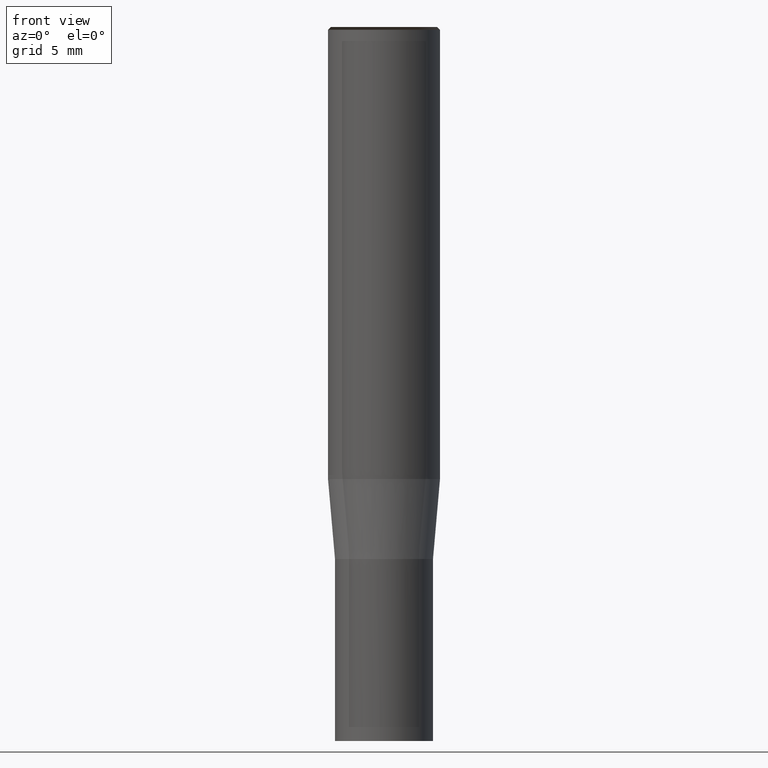
[diagram: clean part render]
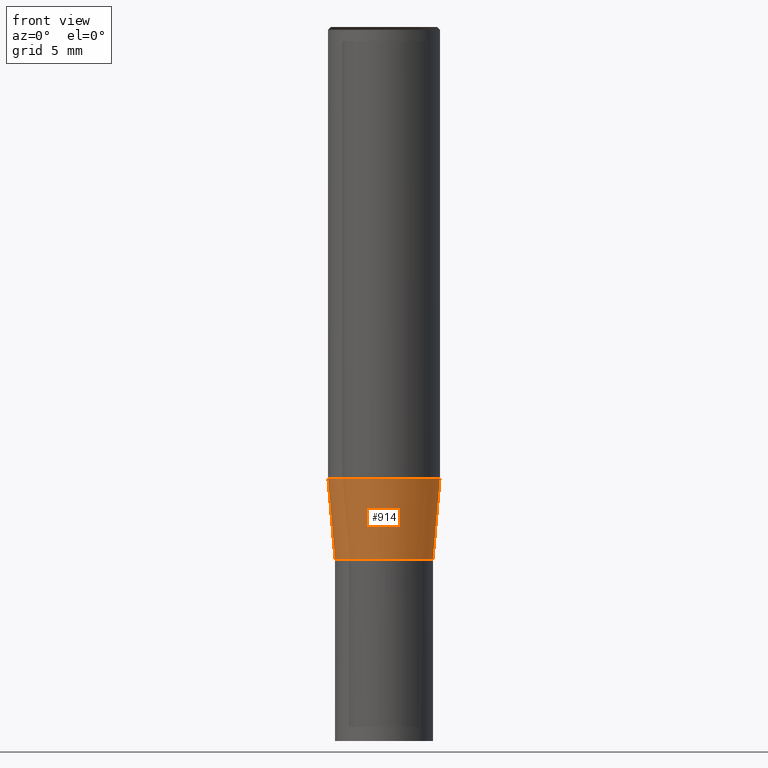
[diagram: same view with one face highlighted and labeled with its STEP entity id]
A machine part, front view. The second image highlights one B-rep face of the part: STEP entity #914.
In plain terms, the highlighted face is a freeform B-spline surface patch.
Its self-contained STEP definition (entity closure, byte-faithful):
#609=CARTESIAN_POINT('',(3.5,0.0,-6.0));
#613=CARTESIAN_POINT('',(-3.5,0.0,-6.0));
#617=CARTESIAN_POINT('',(-3.5,-3.5,-6.0));
#618=CARTESIAN_POINT('',(0.0,-3.5,-6.0));
#619=CARTESIAN_POINT('',(3.5,-3.5,-6.0));
#620=CARTESIAN_POINT('',(4.0,0.0,-0.284973848619));
#624=CARTESIAN_POINT('',(-4.0,0.0,-0.284973848619));
#641=CARTESIAN_POINT('',(-4.0,-4.0,-0.284973848619));
#642=CARTESIAN_POINT('',(0.0,-4.0,-0.284973848619));
#643=CARTESIAN_POINT('',(4.0,-4.0,-0.284973848619));
#895=(
BOUNDED_SURFACE()
B_SPLINE_SURFACE(1,2,(
(#613,#617,#618,#619,#609),
(#624,#641,#642,#643,#620)
), .UNSPECIFIED.,.F.,.F.,.F.)
B_SPLINE_SURFACE_WITH_KNOTS((2,2),(3,2,3),(
0.0,1.0),(
0.0,0.5,1.0), .UNSPECIFIED.)
GEOMETRIC_REPRESENTATION_ITEM()
RATIONAL_B_SPLINE_SURFACE(((1.0,0.707106781187,1.0,0.707106781187,1.0),
(1.0,0.707106781187,1.0,0.707106781187,1.0)
))
REPRESENTATION_ITEM('')
SURFACE()
);
#896=(
BOUNDED_CURVE()
B_SPLINE_CURVE(2,(#609,#619,#618,#617,#613),.UNSPECIFIED.,.F.,.F.)
B_SPLINE_CURVE_WITH_KNOTS((3,2,3),
(0.0,0.5,1.0),.UNSPECIFIED.)
CURVE()
GEOMETRIC_REPRESENTATION_ITEM()
RATIONAL_B_SPLINE_CURVE((1.0,0.707106781187,1.0,0.707106781187,1.0))
REPRESENTATION_ITEM('')
);
#897=(
BOUNDED_CURVE()
B_SPLINE_CURVE(1,(#613,#624),.UNSPECIFIED.,.F.,.F.)
B_SPLINE_CURVE_WITH_KNOTS((2,2),
(0.0,1.0),.UNSPECIFIED.)
CURVE()
GEOMETRIC_REPRESENTATION_ITEM()
RATIONAL_B_SPLINE_CURVE((1.0,1.0))
REPRESENTATION_ITEM('')
);
#898=(
BOUNDED_CURVE()
B_SPLINE_CURVE(2,(#624,#641,#642,#643,#620),.UNSPECIFIED.,.F.,.F.)
B_SPLINE_CURVE_WITH_KNOTS((3,2,3),
(0.0,0.5,1.0),.UNSPECIFIED.)
CURVE()
GEOMETRIC_REPRESENTATION_ITEM()
RATIONAL_B_SPLINE_CURVE((1.0,0.707106781187,1.0,0.707106781187,1.0))
REPRESENTATION_ITEM('')
);
#899=(
BOUNDED_CURVE()
B_SPLINE_CURVE(1,(#620,#609),.UNSPECIFIED.,.F.,.F.)
B_SPLINE_CURVE_WITH_KNOTS((2,2),
(0.0,1.0),.UNSPECIFIED.)
CURVE()
GEOMETRIC_REPRESENTATION_ITEM()
RATIONAL_B_SPLINE_CURVE((1.0,1.0))
REPRESENTATION_ITEM('')
);
#900=VERTEX_POINT('',#609);
#901=VERTEX_POINT('',#613);
#902=VERTEX_POINT('',#620);
#903=VERTEX_POINT('',#624);
#904=EDGE_CURVE('',#900,#901,#896,.T.);
#905=EDGE_CURVE('',#901,#903,#897,.T.);
#906=EDGE_CURVE('',#903,#902,#898,.T.);
#907=EDGE_CURVE('',#902,#900,#899,.T.);
#908=ORIENTED_EDGE('',*,*,#904,.T.);
#909=ORIENTED_EDGE('',*,*,#905,.T.);
#910=ORIENTED_EDGE('',*,*,#906,.T.);
#911=ORIENTED_EDGE('',*,*,#907,.T.);
#912=EDGE_LOOP('',(#908,#909,#910,#911));
#913=FACE_OUTER_BOUND('',#912,.T.);
#914=ADVANCED_FACE('',(#913),#895,.T.);